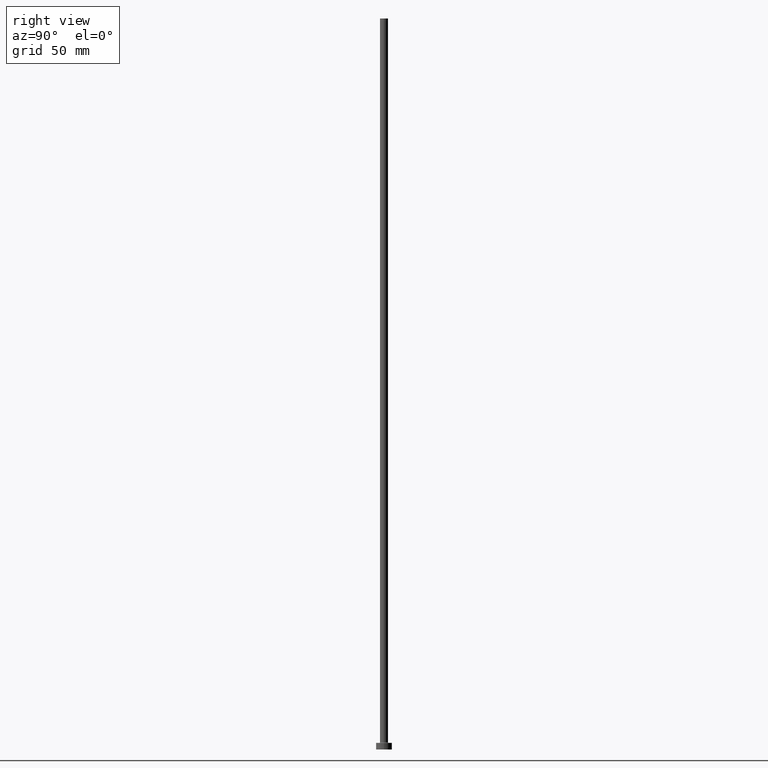
[diagram: clean part render]
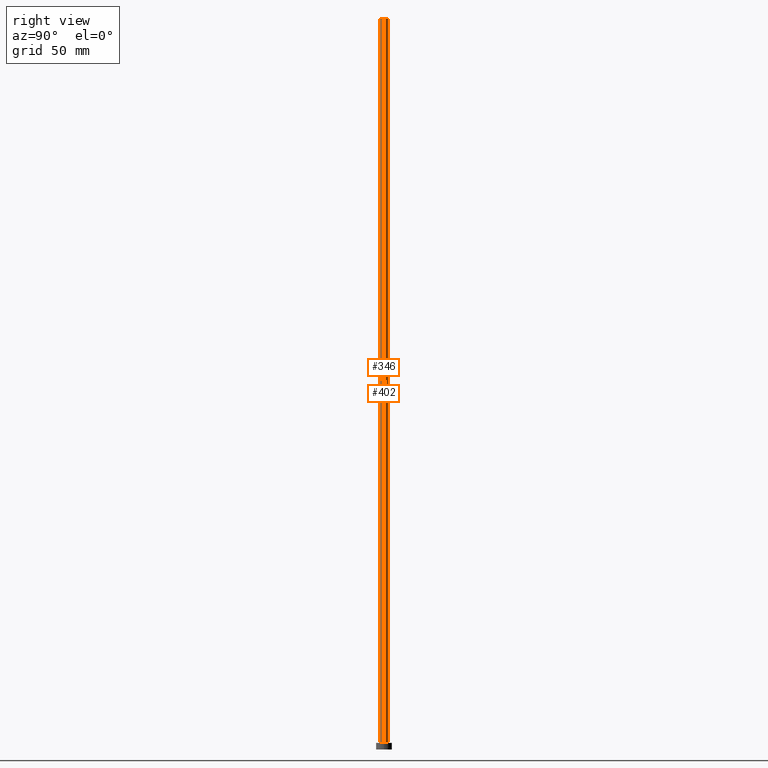
[diagram: same view with one multi-face feature highlighted, each face labeled with its STEP entity id]
A machine part, right view. The highlighted faces form ONE feature: a constant-radius fillet chain: 2 tangent blend faces with common blend radius 3 mm. The faces share edges in the B-rep.
Their STEP definitions:
[1] entity #346 (Cylinder):
#9 = CARTESIAN_POINT ( 'NONE',  ( 3.000000000000000444, 3.673940397442060361E-16, 550.0000000000000000 ) ) ;
#15 = EDGE_CURVE ( 'NONE', #160, #459, #411, .T. ) ;
#17 = LINE ( 'NONE', #9, #142 ) ;
#21 = CIRCLE ( 'NONE', #59, 3.000000000000000444 ) ;
#28 = AXIS2_PLACEMENT_3D ( 'NONE', #117, #121, #152 ) ;
#53 = DIRECTION ( 'NONE',  ( 0.000000000000000000, 0.000000000000000000, 1.000000000000000000 ) ) ;
#59 = AXIS2_PLACEMENT_3D ( 'NONE', #454, #293, #416 ) ;
#78 = EDGE_CURVE ( 'NONE', #459, #260, #21, .T. ) ;
#81 = VECTOR ( 'NONE', #340, 1000.000000000000000 ) ;
#117 = CARTESIAN_POINT ( 'NONE',  ( 0.000000000000000000, 0.000000000000000000, 550.0000000000000000 ) ) ;
#121 = DIRECTION ( 'NONE',  ( -0.000000000000000000, -0.000000000000000000, -1.000000000000000000 ) ) ;
#142 = VECTOR ( 'NONE', #440, 1000.000000000000000 ) ;
#151 = ORIENTED_EDGE ( 'NONE', *, *, #78, .T. ) ;
#152 = DIRECTION ( 'NONE',  ( -1.000000000000000000, 0.000000000000000000, 0.000000000000000000 ) ) ;
#156 = AXIS2_PLACEMENT_3D ( 'NONE', #332, #53, #284 ) ;
#158 = ORIENTED_EDGE ( 'NONE', *, *, #241, .F. ) ;
#160 = VERTEX_POINT ( 'NONE', #306 ) ;
#180 = CARTESIAN_POINT ( 'NONE',  ( 3.000000000000000444, 3.673940397442060361E-16, 5.499999999999949374 ) ) ;
#206 = EDGE_CURVE ( 'NONE', #160, #265, #343, .T. ) ;
#232 = ORIENTED_EDGE ( 'NONE', *, *, #15, .T. ) ;
#241 = EDGE_CURVE ( 'NONE', #265, #260, #17, .T. ) ;
#255 = CARTESIAN_POINT ( 'NONE',  ( 3.000000000000000444, 3.673940397442060361E-16, 550.0000000000000000 ) ) ;
#260 = VERTEX_POINT ( 'NONE', #180 ) ;
#265 = VERTEX_POINT ( 'NONE', #255 ) ;
#279 = FACE_OUTER_BOUND ( 'NONE', #333, .T. ) ;
#284 = DIRECTION ( 'NONE',  ( 1.000000000000000000, 0.000000000000000000, 0.000000000000000000 ) ) ;
#293 = DIRECTION ( 'NONE',  ( 0.000000000000000000, 0.000000000000000000, 1.000000000000000000 ) ) ;
#295 = ORIENTED_EDGE ( 'NONE', *, *, #206, .F. ) ;
#306 = CARTESIAN_POINT ( 'NONE',  ( -3.000000000000000444, 0.000000000000000000, 550.0000000000000000 ) ) ;
#307 = CARTESIAN_POINT ( 'NONE',  ( -3.000000000000000444, 0.000000000000000000, 5.499999999999949374 ) ) ;
#332 = CARTESIAN_POINT ( 'NONE',  ( 0.000000000000000000, 0.000000000000000000, 550.0000000000000000 ) ) ;
#333 = EDGE_LOOP ( 'NONE', ( #158, #295, #232, #151 ) ) ;
#340 = DIRECTION ( 'NONE',  ( -0.000000000000000000, -0.000000000000000000, -1.000000000000000000 ) ) ;
#341 = CARTESIAN_POINT ( 'NONE',  ( -3.000000000000000444, 0.000000000000000000, 550.0000000000000000 ) ) ;
#343 = CIRCLE ( 'NONE', #156, 3.000000000000000444 ) ;
#346 = ADVANCED_FACE ( 'NONE', ( #279 ), #434, .T. ) ;
#411 = LINE ( 'NONE', #341, #81 ) ;
#416 = DIRECTION ( 'NONE',  ( 1.000000000000000000, 0.000000000000000000, 0.000000000000000000 ) ) ;
#434 = CYLINDRICAL_SURFACE ( 'NONE', #28, 3.000000000000000444 ) ;
#440 = DIRECTION ( 'NONE',  ( -0.000000000000000000, -0.000000000000000000, -1.000000000000000000 ) ) ;
#454 = CARTESIAN_POINT ( 'NONE',  ( 0.000000000000000000, 0.000000000000000000, 5.499999999999949374 ) ) ;
#459 = VERTEX_POINT ( 'NONE', #307 ) ;
[2] entity #402 (Cylinder):
#9 = CARTESIAN_POINT ( 'NONE',  ( 3.000000000000000444, 3.673940397442060361E-16, 550.0000000000000000 ) ) ;
#15 = EDGE_CURVE ( 'NONE', #160, #459, #411, .T. ) ;
#17 = LINE ( 'NONE', #9, #142 ) ;
#50 = DIRECTION ( 'NONE',  ( 1.000000000000000000, 0.000000000000000000, 0.000000000000000000 ) ) ;
#74 = CIRCLE ( 'NONE', #329, 3.000000000000000444 ) ;
#80 = DIRECTION ( 'NONE',  ( 0.000000000000000000, 0.000000000000000000, 1.000000000000000000 ) ) ;
#81 = VECTOR ( 'NONE', #340, 1000.000000000000000 ) ;
#85 = FACE_OUTER_BOUND ( 'NONE', #318, .T. ) ;
#112 = CARTESIAN_POINT ( 'NONE',  ( 0.000000000000000000, 0.000000000000000000, 5.499999999999949374 ) ) ;
#142 = VECTOR ( 'NONE', #440, 1000.000000000000000 ) ;
#160 = VERTEX_POINT ( 'NONE', #306 ) ;
#176 = DIRECTION ( 'NONE',  ( -1.000000000000000000, 0.000000000000000000, 0.000000000000000000 ) ) ;
#180 = CARTESIAN_POINT ( 'NONE',  ( 3.000000000000000444, 3.673940397442060361E-16, 5.499999999999949374 ) ) ;
#191 = CARTESIAN_POINT ( 'NONE',  ( 0.000000000000000000, 0.000000000000000000, 550.0000000000000000 ) ) ;
#217 = AXIS2_PLACEMENT_3D ( 'NONE', #362, #453, #176 ) ;
#218 = CYLINDRICAL_SURFACE ( 'NONE', #217, 3.000000000000000444 ) ;
#241 = EDGE_CURVE ( 'NONE', #265, #260, #17, .T. ) ;
#255 = CARTESIAN_POINT ( 'NONE',  ( 3.000000000000000444, 3.673940397442060361E-16, 550.0000000000000000 ) ) ;
#260 = VERTEX_POINT ( 'NONE', #180 ) ;
#264 = ORIENTED_EDGE ( 'NONE', *, *, #241, .T. ) ;
#265 = VERTEX_POINT ( 'NONE', #255 ) ;
#267 = AXIS2_PLACEMENT_3D ( 'NONE', #112, #317, #378 ) ;
#291 = CIRCLE ( 'NONE', #267, 3.000000000000000444 ) ;
#306 = CARTESIAN_POINT ( 'NONE',  ( -3.000000000000000444, 0.000000000000000000, 550.0000000000000000 ) ) ;
#307 = CARTESIAN_POINT ( 'NONE',  ( -3.000000000000000444, 0.000000000000000000, 5.499999999999949374 ) ) ;
#311 = EDGE_CURVE ( 'NONE', #265, #160, #74, .T. ) ;
#317 = DIRECTION ( 'NONE',  ( 0.000000000000000000, 0.000000000000000000, 1.000000000000000000 ) ) ;
#318 = EDGE_LOOP ( 'NONE', ( #448, #264, #425, #385 ) ) ;
#329 = AXIS2_PLACEMENT_3D ( 'NONE', #191, #80, #50 ) ;
#340 = DIRECTION ( 'NONE',  ( -0.000000000000000000, -0.000000000000000000, -1.000000000000000000 ) ) ;
#341 = CARTESIAN_POINT ( 'NONE',  ( -3.000000000000000444, 0.000000000000000000, 550.0000000000000000 ) ) ;
#362 = CARTESIAN_POINT ( 'NONE',  ( 0.000000000000000000, 0.000000000000000000, 550.0000000000000000 ) ) ;
#378 = DIRECTION ( 'NONE',  ( 1.000000000000000000, 0.000000000000000000, 0.000000000000000000 ) ) ;
#385 = ORIENTED_EDGE ( 'NONE', *, *, #15, .F. ) ;
#402 = ADVANCED_FACE ( 'NONE', ( #85 ), #218, .T. ) ;
#410 = EDGE_CURVE ( 'NONE', #260, #459, #291, .T. ) ;
#411 = LINE ( 'NONE', #341, #81 ) ;
#425 = ORIENTED_EDGE ( 'NONE', *, *, #410, .T. ) ;
#440 = DIRECTION ( 'NONE',  ( -0.000000000000000000, -0.000000000000000000, -1.000000000000000000 ) ) ;
#448 = ORIENTED_EDGE ( 'NONE', *, *, #311, .F. ) ;
#453 = DIRECTION ( 'NONE',  ( -0.000000000000000000, -0.000000000000000000, -1.000000000000000000 ) ) ;
#459 = VERTEX_POINT ( 'NONE', #307 ) ;